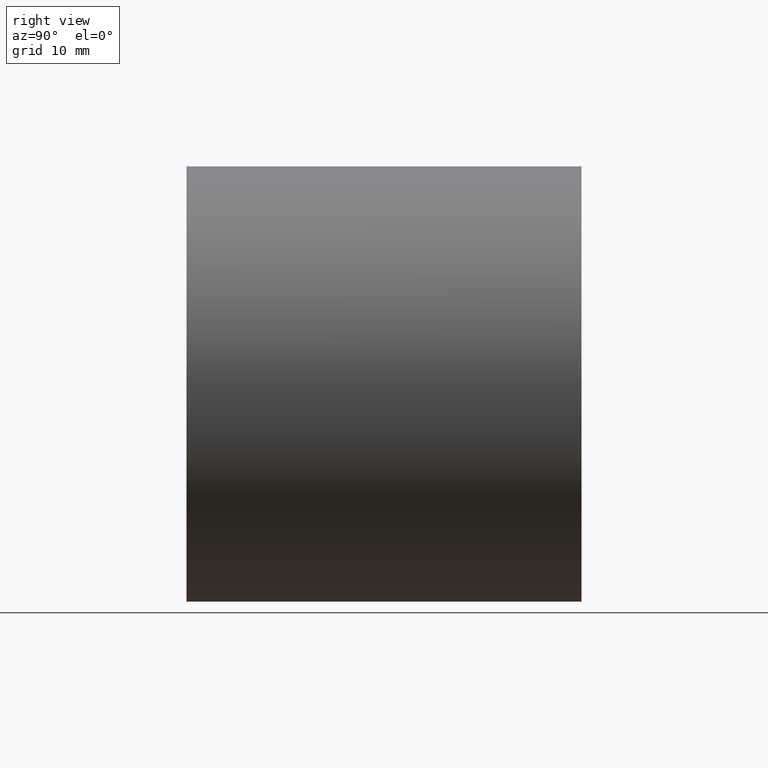
[diagram: clean part render]
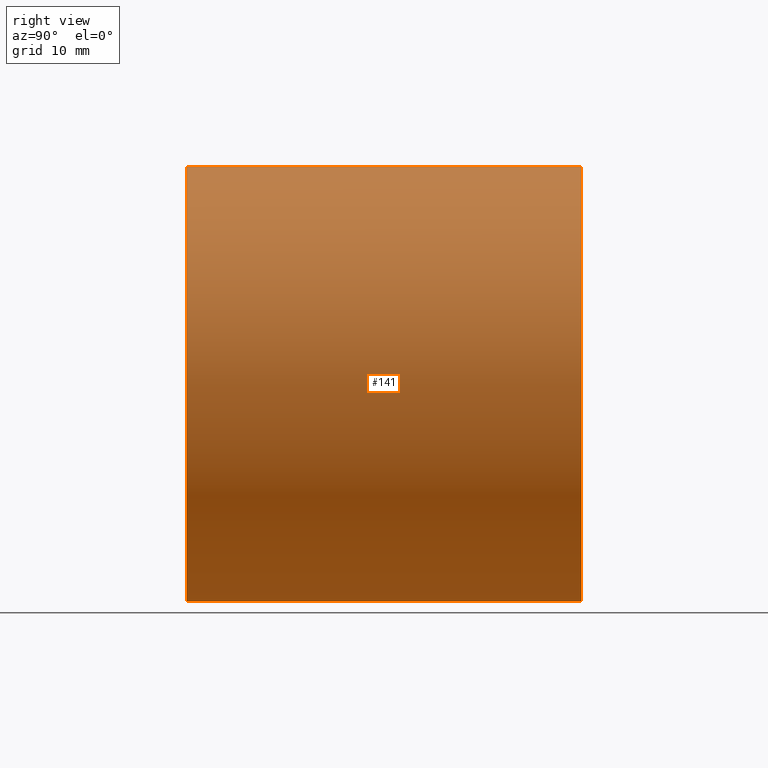
[diagram: same view with one face highlighted and labeled with its STEP entity id]
A machine part, right view. The second image highlights one B-rep face of the part: STEP entity #141.
In plain terms, the highlighted cylindrical surface (partial cylindrical patch) has radius 28 mm, axis along (-0, 1, -0).
Its self-contained STEP definition (entity closure, byte-faithful):
#3 = CYLINDRICAL_SURFACE ( 'NONE', #216, 28.00000000000002100 ) ;
#7 = AXIS2_PLACEMENT_3D ( 'NONE', #200, #154, #181 ) ;
#12 = ORIENTED_EDGE ( 'NONE', *, *, #153, .F. ) ;
#18 = VERTEX_POINT ( 'NONE', #111 ) ;
#27 = AXIS2_PLACEMENT_3D ( 'NONE', #168, #56, #57 ) ;
#30 = CIRCLE ( 'NONE', #7, 28.00000000000002100 ) ;
#35 = CARTESIAN_POINT ( 'NONE',  ( 0.0000000000000000000, -2.775557561562891400E-014, 28.00000000000002100 ) ) ;
#42 = EDGE_CURVE ( 'NONE', #203, #163, #94, .T. ) ;
#51 = FACE_OUTER_BOUND ( 'NONE', #151, .T. ) ;
#52 = DIRECTION ( 'NONE',  ( -0.0000000000000000000, 1.000000000000000000, -0.0000000000000000000 ) ) ;
#54 = DIRECTION ( 'NONE',  ( 0.0000000000000000000, 0.0000000000000000000, 1.000000000000000000 ) ) ;
#56 = DIRECTION ( 'NONE',  ( -0.0000000000000000000, 1.000000000000000000, -0.0000000000000000000 ) ) ;
#57 = DIRECTION ( 'NONE',  ( 0.0000000000000000000, 0.0000000000000000000, 1.000000000000000000 ) ) ;
#66 = ORIENTED_EDGE ( 'NONE', *, *, #230, .F. ) ;
#80 = CIRCLE ( 'NONE', #27, 28.00000000000002100 ) ;
#91 = VERTEX_POINT ( 'NONE', #35 ) ;
#94 = LINE ( 'NONE', #147, #146 ) ;
#98 = ORIENTED_EDGE ( 'NONE', *, *, #105, .T. ) ;
#105 = EDGE_CURVE ( 'NONE', #91, #203, #80, .T. ) ;
#111 = CARTESIAN_POINT ( 'NONE',  ( 0.0000000000000000000, 50.79999999999998300, 28.00000000000002100 ) ) ;
#114 = CARTESIAN_POINT ( 'NONE',  ( 3.429011037612591600E-015, 50.79999999999998300, -28.00000000000002100 ) ) ;
#137 = VECTOR ( 'NONE', #191, 1000.000000000000000 ) ;
#141 = ADVANCED_FACE ( 'NONE', ( #51 ), #3, .T. ) ;
#146 = VECTOR ( 'NONE', #52, 1000.000000000000000 ) ;
#147 = CARTESIAN_POINT ( 'NONE',  ( 3.429011037612591600E-015, 161.3761669434274500, -28.00000000000002100 ) ) ;
#151 = EDGE_LOOP ( 'NONE', ( #98, #240, #12, #66 ) ) ;
#153 = EDGE_CURVE ( 'NONE', #18, #163, #30, .T. ) ;
#154 = DIRECTION ( 'NONE',  ( -0.0000000000000000000, 1.000000000000000000, -0.0000000000000000000 ) ) ;
#163 = VERTEX_POINT ( 'NONE', #114 ) ;
#168 = CARTESIAN_POINT ( 'NONE',  ( 0.0000000000000000000, -2.775557561562891400E-014, 0.0000000000000000000 ) ) ;
#173 = CARTESIAN_POINT ( 'NONE',  ( 0.0000000000000000000, 161.3761669434274500, 28.00000000000002100 ) ) ;
#181 = DIRECTION ( 'NONE',  ( 0.0000000000000000000, 0.0000000000000000000, 1.000000000000000000 ) ) ;
#182 = CARTESIAN_POINT ( 'NONE',  ( 0.0000000000000000000, 161.3761669434274500, 0.0000000000000000000 ) ) ;
#191 = DIRECTION ( 'NONE',  ( -0.0000000000000000000, 1.000000000000000000, -0.0000000000000000000 ) ) ;
#200 = CARTESIAN_POINT ( 'NONE',  ( 0.0000000000000000000, 50.79999999999998300, 0.0000000000000000000 ) ) ;
#203 = VERTEX_POINT ( 'NONE', #205 ) ;
#205 = CARTESIAN_POINT ( 'NONE',  ( 3.429011037612591600E-015, -2.775557561562891400E-014, -28.00000000000002100 ) ) ;
#206 = LINE ( 'NONE', #173, #137 ) ;
#216 = AXIS2_PLACEMENT_3D ( 'NONE', #182, #222, #54 ) ;
#222 = DIRECTION ( 'NONE',  ( -0.0000000000000000000, 1.000000000000000000, -0.0000000000000000000 ) ) ;
#230 = EDGE_CURVE ( 'NONE', #91, #18, #206, .T. ) ;
#240 = ORIENTED_EDGE ( 'NONE', *, *, #42, .T. ) ;